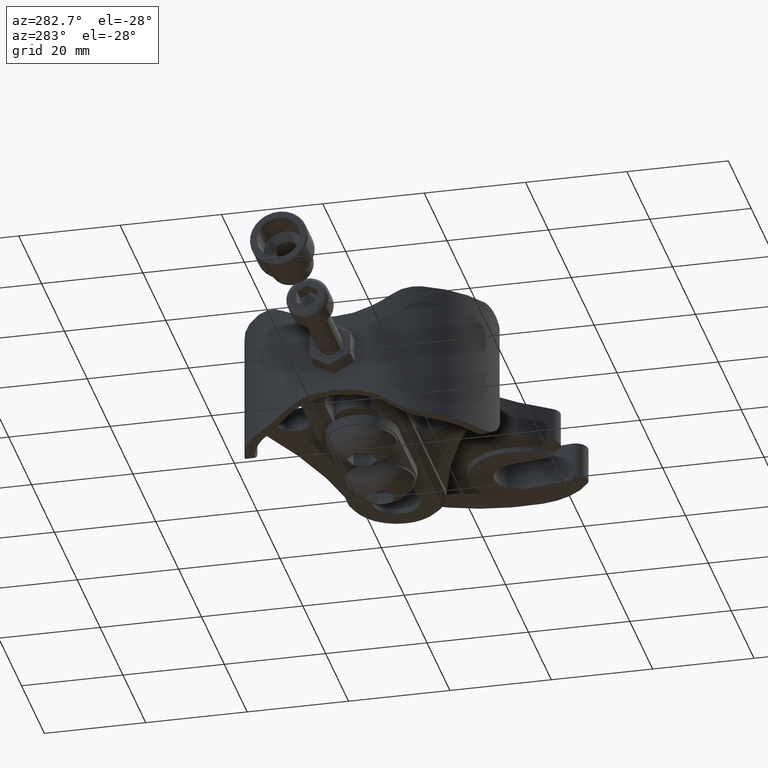
[diagram: clean part render]
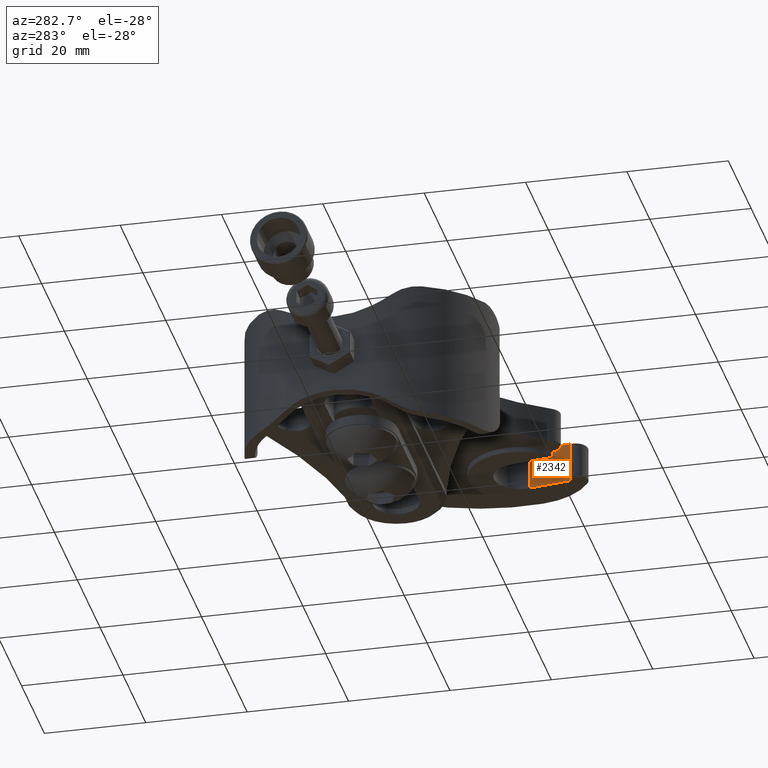
[diagram: same view with one face highlighted and labeled with its STEP entity id]
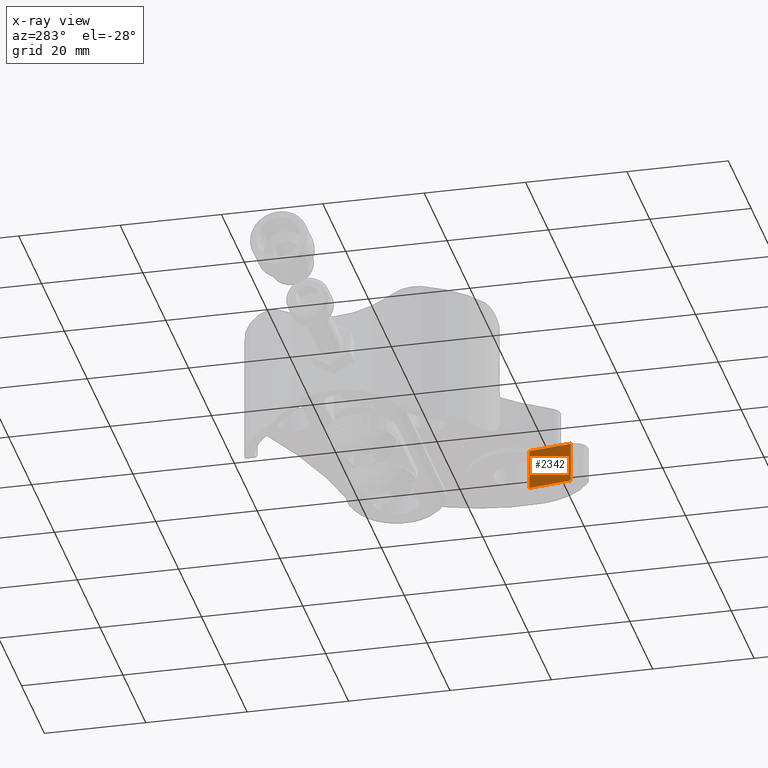
[diagram: x-ray of the same camera — body ghosted, the highlighted face saturated]
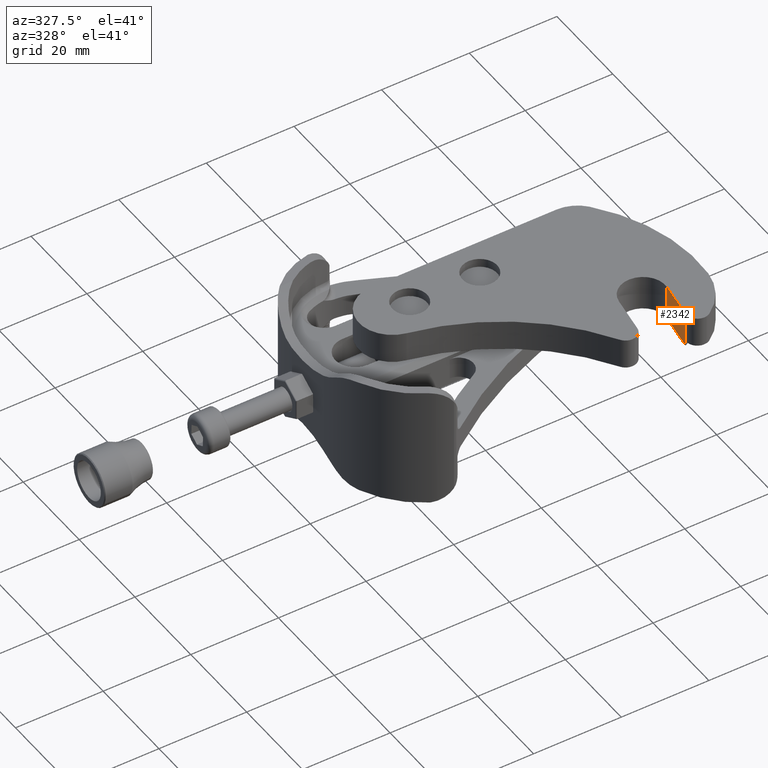
[diagram: same view with one face highlighted and labeled with its STEP entity id]
A machine part, auxiliary view. The second image highlights one B-rep face of the part: STEP entity #2342.
The next image is the same camera in x-ray: the body ghosted, the highlighted face saturated — about 13% of this face is hidden behind the body in this view.
A second angle (auxiliary view) of the same face is appended — the face is thin or edge-on in the first view.
In plain terms, the highlighted planar face has unit normal (0.9895, -0.1443, 0).
Its self-contained STEP definition (entity closure, byte-faithful):
#156 = CARTESIAN_POINT ( 'NONE',  ( 4.549155748539999600, -0.4656073161459999300, 0.2750000000000000200 ) ) ;
#158 = PLANE ( 'NONE',  #7407 ) ;
#160 = DIRECTION ( 'NONE',  ( -0.3607522830325798900, 0.9326616697853416000, 0.0000000000000000000 ) ) ;
#161 = DIRECTION ( 'NONE',  ( -0.9326616697853414900, -0.3607522830325798300, 0.0000000000000000000 ) ) ;
#640 = EDGE_CURVE ( 'NONE', #2666, #2637, #3008, .T. ) ;
#641 = EDGE_CURVE ( 'NONE', #2609, #2666, #3005, .T. ) ;
#1181 = ORIENTED_EDGE ( 'NONE', *, *, #2820, .T. ) ;
#1202 = ORIENTED_EDGE ( 'NONE', *, *, #641, .F. ) ;
#1208 = ORIENTED_EDGE ( 'NONE', *, *, #640, .F. ) ;
#1673 = ORIENTED_EDGE ( 'NONE', *, *, #2835, .T. ) ;
#2342 = ADVANCED_FACE ( 'NONE', ( #8902 ), #158, .F. ) ;
#2609 = VERTEX_POINT ( 'NONE', #9347 ) ;
#2637 = VERTEX_POINT ( 'NONE', #9375 ) ;
#2638 = VERTEX_POINT ( 'NONE', #9376 ) ;
#2666 = VERTEX_POINT ( 'NONE', #9404 ) ;
#2820 = EDGE_CURVE ( 'NONE', #2638, #2637, #9108, .T. ) ;
#2835 = EDGE_CURVE ( 'NONE', #2609, #2638, #9135, .T. ) ;
#3005 = LINE ( 'NONE', #8096, #3012 ) ;
#3008 = LINE ( 'NONE', #8090, #3010 ) ;
#3010 = VECTOR ( 'NONE', #8091, 39.37007874015748100 ) ;
#3012 = VECTOR ( 'NONE', #8100, 39.37007874015748900 ) ;
#4204 = CARTESIAN_POINT ( 'NONE',  ( 4.549155748539999600, -0.4656073161459999300, 0.0000000000000000000 ) ) ;
#4214 = DIRECTION ( 'NONE',  ( 0.9326616697853414900, 0.3607522830325797800, -0.0000000000000000000 ) ) ;
#4244 = DIRECTION ( 'NONE',  ( -0.0000000000000000000, -0.0000000000000000000, -1.000000000000000000 ) ) ;
#4248 = CARTESIAN_POINT ( 'NONE',  ( 4.236331499576070100, -0.5866073161006065700, 0.2750000000000000200 ) ) ;
#7316 = EDGE_LOOP ( 'NONE', ( #1181, #1208, #1202, #1673 ) ) ;
#7407 = AXIS2_PLACEMENT_3D ( 'NONE', #156, #160, #161 ) ;
#8090 = CARTESIAN_POINT ( 'NONE',  ( 4.549155748002433200, -0.4656073147562168600, 0.2750000000000000200 ) ) ;
#8091 = DIRECTION ( 'NONE',  ( -0.0000000000000000000, -0.0000000000000000000, -1.000000000000000000 ) ) ;
#8096 = CARTESIAN_POINT ( 'NONE',  ( 4.549155748539999600, -0.4656073161459999300, 0.3150000000000000000 ) ) ;
#8100 = DIRECTION ( 'NONE',  ( 0.9326616697853414900, 0.3607522830325797800, -0.0000000000000000000 ) ) ;
#8902 = FACE_OUTER_BOUND ( 'NONE', #7316, .T. ) ;
#9108 = LINE ( 'NONE', #4204, #9116 ) ;
#9116 = VECTOR ( 'NONE', #4214, 39.37007874015748900 ) ;
#9135 = LINE ( 'NONE', #4248, #9138 ) ;
#9138 = VECTOR ( 'NONE', #4244, 39.37007874015748100 ) ;
#9347 = CARTESIAN_POINT ( 'NONE',  ( 4.236331499576070100, -0.5866073161006065700, 0.3150000000000000000 ) ) ;
#9375 = CARTESIAN_POINT ( 'NONE',  ( 4.549155748002433200, -0.4656073147562168600, 0.0000000000000000000 ) ) ;
#9376 = CARTESIAN_POINT ( 'NONE',  ( 4.236331499576070100, -0.5866073161006065700, 0.0000000000000000000 ) ) ;
#9404 = CARTESIAN_POINT ( 'NONE',  ( 4.549155748539999600, -0.4656073161459999300, 0.3150000000000000000 ) ) ;